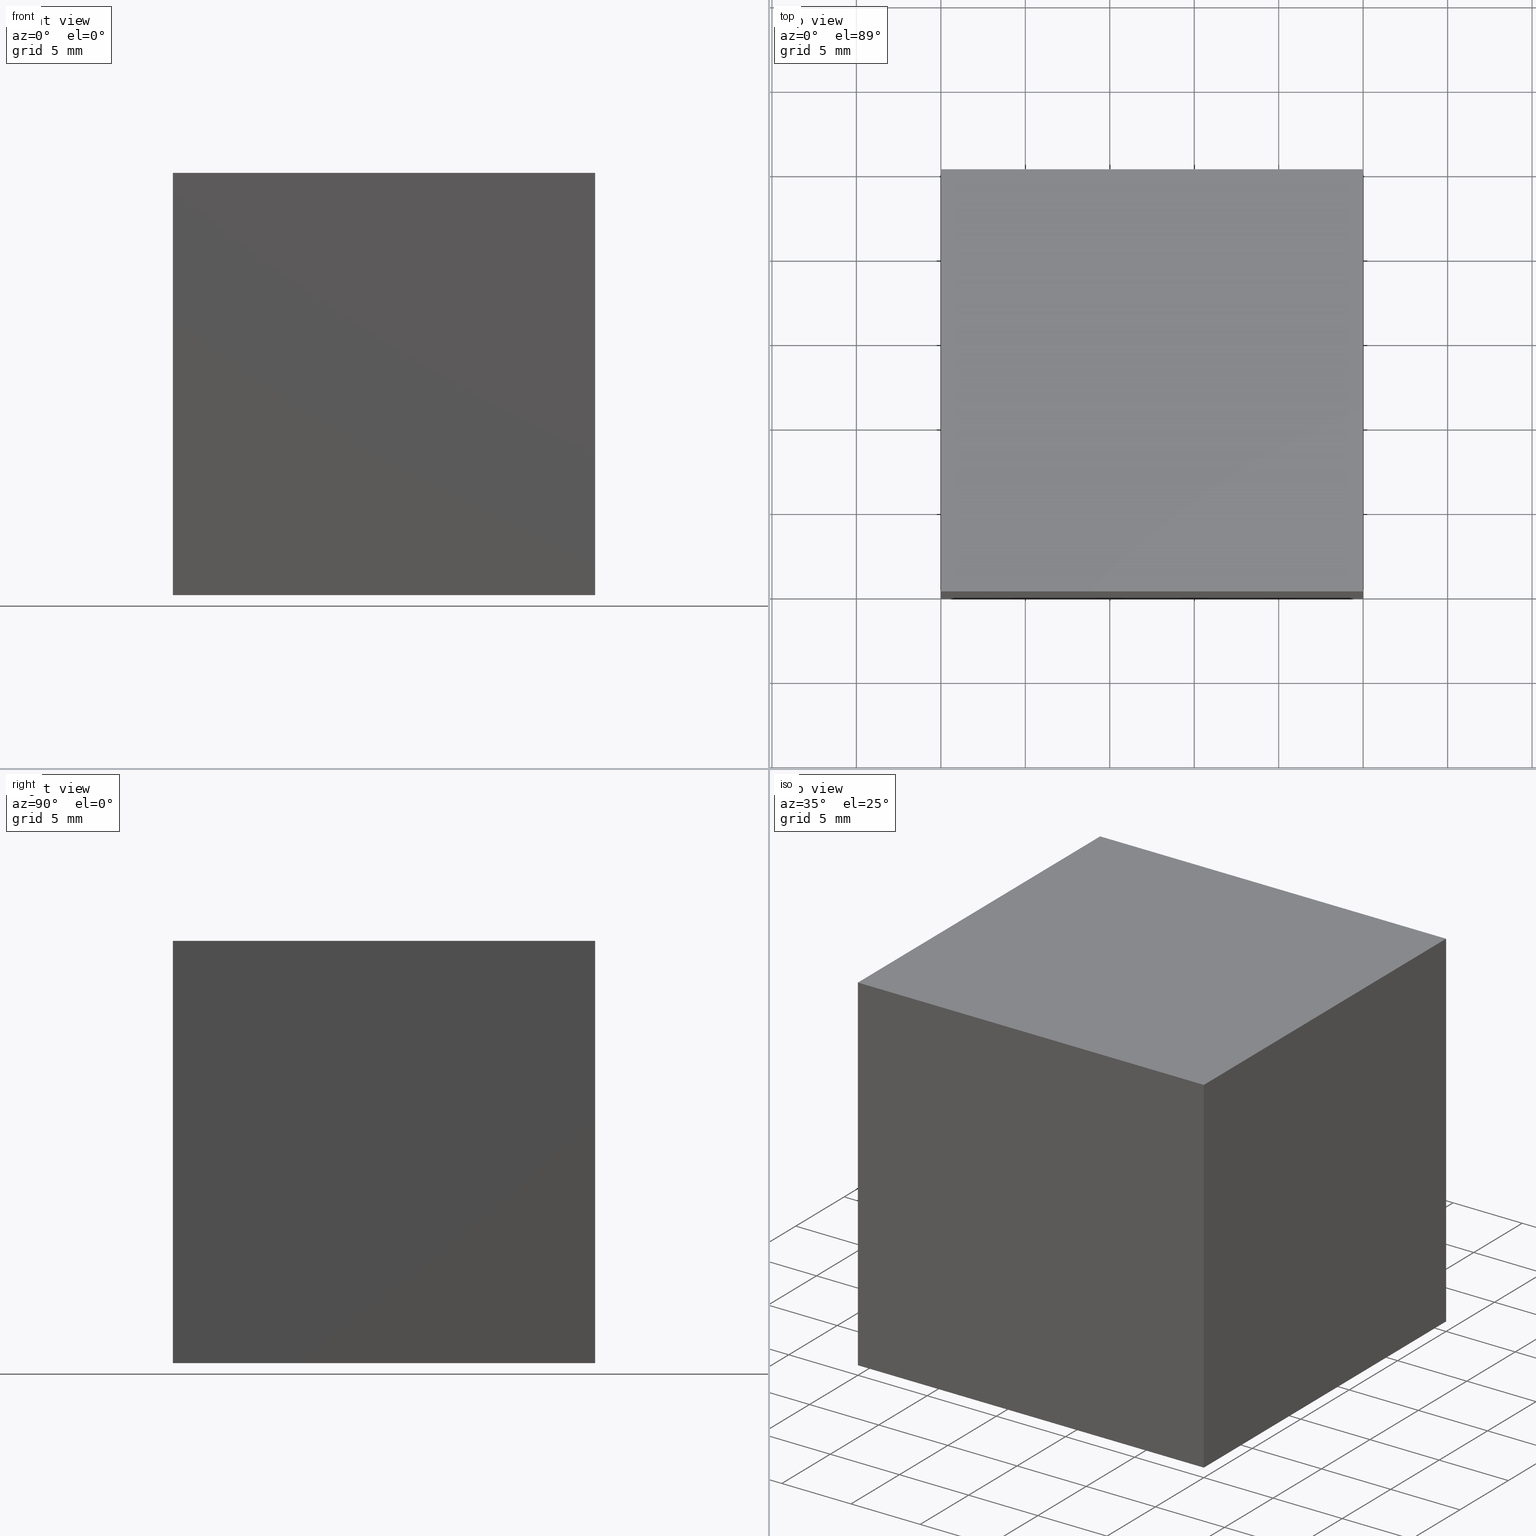
[diagram: canonical four-view strip — front | top / right | iso, engineering-drawing reading convention]
A machine part, canonical four-view strip (front | top / right | iso — engineering-drawing reading convention). The complete STEP part file that produces these views, byte-faithful:
ISO-10303-21;
HEADER;
FILE_DESCRIPTION (( 'STEP AP214' ),
    '1' );
FILE_NAME ('352515.STEP',
    '2019-08-15T02:49:03',
    ( 'user' ),
    ( '΢���й�' ),
    'SwSTEP 2.0',
    'SolidWorks 2016',
    '' );
FILE_SCHEMA (( 'AUTOMOTIVE_DESIGN' ));
ENDSEC;

DATA;
#1 = ORIENTED_EDGE ( 'NONE', *, *, #254, .T. ) ;
#2 = EDGE_CURVE ( 'NONE', #12, #44, #212, .T. ) ;
#3 =( NAMED_UNIT ( * ) PLANE_ANGLE_UNIT ( ) SI_UNIT ( $, .RADIAN. ) );
#4 = DIRECTION ( 'NONE',  ( -0.0000000000000000000, 0.0000000000000000000, 1.000000000000000000 ) ) ;
#5 = DIRECTION ( 'NONE',  ( 0.0000000000000000000, 0.0000000000000000000, 1.000000000000000000 ) ) ;
#6 = VECTOR ( 'NONE', #240, 1000.000000000000000 ) ;
#7 = FACE_OUTER_BOUND ( 'NONE', #72, .T. ) ;
#8 =( GEOMETRIC_REPRESENTATION_CONTEXT ( 3 ) GLOBAL_UNCERTAINTY_ASSIGNED_CONTEXT ( ( #21 ) ) GLOBAL_UNIT_ASSIGNED_CONTEXT ( ( #279, #176, #89 ) ) REPRESENTATION_CONTEXT ( 'NONE', 'WORKASPACE' ) );
#9 = EDGE_LOOP ( 'NONE', ( #11, #247, #297, #142 ) ) ;
#10 = SURFACE_STYLE_USAGE ( .BOTH. , #76 ) ;
#11 = ORIENTED_EDGE ( 'NONE', *, *, #92, .F. ) ;
#12 = VERTEX_POINT ( 'NONE', #295 ) ;
#13 = SURFACE_STYLE_FILL_AREA ( #40 ) ;
#14 = PLANE ( 'NONE',  #77 ) ;
#15 = DIRECTION ( 'NONE',  ( -1.000000000000000000, -0.0000000000000000000, -0.0000000000000000000 ) ) ;
#16 = DIRECTION ( 'NONE',  ( -1.000000000000000000, 0.0000000000000000000, 0.0000000000000000000 ) ) ;
#17 = EDGE_CURVE ( 'NONE', #267, #90, #138, .T. ) ;
#18 = DIRECTION ( 'NONE',  ( 0.0000000000000000000, 0.0000000000000000000, 1.000000000000000000 ) ) ;
#19 = ORIENTED_EDGE ( 'NONE', *, *, #219, .F. ) ;
#20 = CARTESIAN_POINT ( 'NONE',  ( 0.0000000000000000000, 0.0000000000000000000, 0.0000000000000000000 ) ) ;
#21 = UNCERTAINTY_MEASURE_WITH_UNIT (LENGTH_MEASURE( 1.000000000000000100E-005 ), #279, 'distance_accuracy_value', 'NONE');
#22 = PLANE ( 'NONE',  #71 ) ;
#23 = MECHANICAL_DESIGN_GEOMETRIC_PRESENTATION_REPRESENTATION (  '', ( #37 ), #8 ) ;
#24 = DIRECTION ( 'NONE',  ( -1.000000000000000000, -0.0000000000000000000, -0.0000000000000000000 ) ) ;
#25 = LINE ( 'NONE', #137, #257 ) ;
#26 = ADVANCED_FACE ( 'NONE', ( #65 ), #144, .T. ) ;
#27 = CARTESIAN_POINT ( 'NONE',  ( -25.00000000000000000, -0.0000000000000000000, -25.00000000000000000 ) ) ;
#28 = PRESENTATION_LAYER_ASSIGNMENT (  '', '', ( #37 ) ) ;
#29 = PRODUCT_RELATED_PRODUCT_CATEGORY ( 'part', '', ( #121 ) ) ;
#30 = UNCERTAINTY_MEASURE_WITH_UNIT (LENGTH_MEASURE( 1.000000000000000100E-005 ), #124, 'distance_accuracy_value', 'NONE');
#31 = DIRECTION ( 'NONE',  ( -1.000000000000000000, 0.0000000000000000000, 0.0000000000000000000 ) ) ;
#32 = VERTEX_POINT ( 'NONE', #249 ) ;
#33 = DIRECTION ( 'NONE',  ( 0.0000000000000000000, 1.000000000000000000, 0.0000000000000000000 ) ) ;
#34 = EDGE_CURVE ( 'NONE', #90, #44, #237, .T. ) ;
#35 = ORIENTED_EDGE ( 'NONE', *, *, #264, .F. ) ;
#36 = DIRECTION ( 'NONE',  ( 0.0000000000000000000, -0.0000000000000000000, 1.000000000000000000 ) ) ;
#37 = STYLED_ITEM ( 'NONE', ( #268 ), #223 ) ;
#38 = CARTESIAN_POINT ( 'NONE',  ( -25.00000000000000000, 0.0000000000000000000, -25.00000000000000000 ) ) ;
#39 = SURFACE_STYLE_USAGE ( .BOTH. , #79 ) ;
#40 = FILL_AREA_STYLE ('',( #50 ) ) ;
#41 = EDGE_LOOP ( 'NONE', ( #282, #272, #177 ) ) ;
#42 = APPLICATION_PROTOCOL_DEFINITION ( 'draft international standard', 'automotive_design', 1998, #43 ) ;
#43 = APPLICATION_CONTEXT ( 'automotive_design' ) ;
#44 = VERTEX_POINT ( 'NONE', #256 ) ;
#45 = DIRECTION ( 'NONE',  ( 0.0000000000000000000, 0.0000000000000000000, -1.000000000000000000 ) ) ;
#46 = ADVANCED_FACE ( 'NONE', ( #7 ), #150, .T. ) ;
#47 = DIRECTION ( 'NONE',  ( -0.0000000000000000000, -1.000000000000000000, -0.0000000000000000000 ) ) ;
#48 = CARTESIAN_POINT ( 'NONE',  ( -25.00000000000000000, 25.00000000000000000, -25.00000000000000000 ) ) ;
#49 = ORIENTED_EDGE ( 'NONE', *, *, #182, .F. ) ;
#50 = FILL_AREA_STYLE_COLOUR ( '', #238 ) ;
#51 = ORIENTED_EDGE ( 'NONE', *, *, #17, .F. ) ;
#52 = CARTESIAN_POINT ( 'NONE',  ( -25.00000000000000000, 25.00000000000000000, -25.00000000000000000 ) ) ;
#53 = VECTOR ( 'NONE', #81, 1000.000000000000000 ) ;
#54 =( NAMED_UNIT ( * ) SI_UNIT ( $, .STERADIAN. ) SOLID_ANGLE_UNIT ( ) );
#55 = CARTESIAN_POINT ( 'NONE',  ( -25.00000000000000000, 25.00000000000000000, -25.00000000000000000 ) ) ;
#56 = VERTEX_POINT ( 'NONE', #243 ) ;
#57 = CARTESIAN_POINT ( 'NONE',  ( 0.0000000000000000000, 25.00000000000000000, 0.0000000000000000000 ) ) ;
#58 = PRODUCT_DEFINITION_CONTEXT ( 'detailed design', #75, 'design' ) ;
#59 = EDGE_LOOP ( 'NONE', ( #1, #141, #210, #203 ) ) ;
#60 = LINE ( 'NONE', #103, #127 ) ;
#61 = EDGE_CURVE ( 'NONE', #99, #188, #25, .T. ) ;
#62 = SURFACE_STYLE_FILL_AREA ( #271 ) ;
#63 = LINE ( 'NONE', #20, #261 ) ;
#64 = DIRECTION ( 'NONE',  ( 0.7071067811865475700, 0.0000000000000000000, -0.7071067811865475700 ) ) ;
#65 = FACE_OUTER_BOUND ( 'NONE', #119, .T. ) ;
#66 = AXIS2_PLACEMENT_3D ( 'NONE', #85, #122, #134 ) ;
#67 =( GEOMETRIC_REPRESENTATION_CONTEXT ( 3 ) GLOBAL_UNCERTAINTY_ASSIGNED_CONTEXT ( ( #292 ) ) GLOBAL_UNIT_ASSIGNED_CONTEXT ( ( #160, #3, #54 ) ) REPRESENTATION_CONTEXT ( 'NONE', 'WORKASPACE' ) );
#68 = ADVANCED_FACE ( 'NONE', ( #69 ), #214, .F. ) ;
#69 = FACE_OUTER_BOUND ( 'NONE', #41, .T. ) ;
#70 = EDGE_LOOP ( 'NONE', ( #191, #218, #107, #220 ) ) ;
#71 = AXIS2_PLACEMENT_3D ( 'NONE', #250, #33, #36 ) ;
#72 = EDGE_LOOP ( 'NONE', ( #51, #283, #105, #114 ) ) ;
#73 = COLOUR_RGB ( '',1.000000000000000000, 1.000000000000000000, 1.000000000000000000 ) ;
#74 = VECTOR ( 'NONE', #209, 1000.000000000000100 ) ;
#75 = APPLICATION_CONTEXT ( 'automotive_design' ) ;
#76 = SURFACE_SIDE_STYLE ('',( #13 ) ) ;
#77 = AXIS2_PLACEMENT_3D ( 'NONE', #286, #16, #18 ) ;
#78 = ORIENTED_EDGE ( 'NONE', *, *, #298, .F. ) ;
#79 = SURFACE_SIDE_STYLE ('',( #62 ) ) ;
#80 = LINE ( 'NONE', #280, #100 ) ;
#81 = DIRECTION ( 'NONE',  ( -0.0000000000000000000, -0.0000000000000000000, -1.000000000000000000 ) ) ;
#82 = LINE ( 'NONE', #55, #116 ) ;
#83 = VERTEX_POINT ( 'NONE', #260 ) ;
#84 = AXIS2_PLACEMENT_3D ( 'NONE', #221, #252, #187 ) ;
#85 = CARTESIAN_POINT ( 'NONE',  ( 0.0000000000000000000, 25.00000000000000000, 0.0000000000000000000 ) ) ;
#86 = PLANE ( 'NONE',  #66 ) ;
#87 = DIRECTION ( 'NONE',  ( 1.000000000000000000, 0.0000000000000000000, 0.0000000000000000000 ) ) ;
#88 = VECTOR ( 'NONE', #229, 1000.000000000000100 ) ;
#89 =( NAMED_UNIT ( * ) SI_UNIT ( $, .STERADIAN. ) SOLID_ANGLE_UNIT ( ) );
#90 = VERTEX_POINT ( 'NONE', #148 ) ;
#91 = ORIENTED_EDGE ( 'NONE', *, *, #61, .F. ) ;
#92 = EDGE_CURVE ( 'NONE', #44, #267, #265, .T. ) ;
#93 = CARTESIAN_POINT ( 'NONE',  ( 0.0000000000000000000, 25.00000000000000000, 0.0000000000000000000 ) ) ;
#94 = DIRECTION ( 'NONE',  ( 0.0000000000000000000, 0.0000000000000000000, -1.000000000000000000 ) ) ;
#95 = CARTESIAN_POINT ( 'NONE',  ( 0.0000000000000000000, 25.00000000000000000, 0.0000000000000000000 ) ) ;
#96 = FACE_OUTER_BOUND ( 'NONE', #300, .T. ) ;
#97 = DIRECTION ( 'NONE',  ( -0.0000000000000000000, -0.0000000000000000000, -1.000000000000000000 ) ) ;
#98 =( NAMED_UNIT ( * ) PLANE_ANGLE_UNIT ( ) SI_UNIT ( $, .RADIAN. ) );
#99 = VERTEX_POINT ( 'NONE', #277 ) ;
#100 = VECTOR ( 'NONE', #232, 1000.000000000000100 ) ;
#101 = AXIS2_PLACEMENT_3D ( 'NONE', #93, #165, #118 ) ;
#102 = PLANE ( 'NONE',  #109 ) ;
#103 = CARTESIAN_POINT ( 'NONE',  ( 0.0000000000000000000, 25.00000000000000000, -25.00000000000000000 ) ) ;
#104 = LINE ( 'NONE', #38, #74 ) ;
#105 = ORIENTED_EDGE ( 'NONE', *, *, #217, .T. ) ;
#106 = DIRECTION ( 'NONE',  ( 0.0000000000000000000, -1.000000000000000000, 0.0000000000000000000 ) ) ;
#107 = ORIENTED_EDGE ( 'NONE', *, *, #183, .F. ) ;
#108 =( NAMED_UNIT ( * ) PLANE_ANGLE_UNIT ( ) SI_UNIT ( $, .RADIAN. ) );
#109 = AXIS2_PLACEMENT_3D ( 'NONE', #242, #113, #266 ) ;
#110 =( NAMED_UNIT ( * ) SI_UNIT ( $, .STERADIAN. ) SOLID_ANGLE_UNIT ( ) );
#111 = VECTOR ( 'NONE', #97, 1000.000000000000000 ) ;
#112 = SURFACE_STYLE_USAGE ( .BOTH. , #201 ) ;
#113 = DIRECTION ( 'NONE',  ( 0.0000000000000000000, -0.0000000000000000000, 1.000000000000000000 ) ) ;
#114 = ORIENTED_EDGE ( 'NONE', *, *, #182, .T. ) ;
#115 = CARTESIAN_POINT ( 'NONE',  ( -25.00000000000000000, -0.0000000000000000000, -25.00000000000000000 ) ) ;
#116 = VECTOR ( 'NONE', #47, 1000.000000000000000 ) ;
#117 = VECTOR ( 'NONE', #288, 1000.000000000000100 ) ;
#118 = DIRECTION ( 'NONE',  ( 0.0000000000000000000, 0.0000000000000000000, 1.000000000000000000 ) ) ;
#119 = EDGE_LOOP ( 'NONE', ( #139, #49, #224, #130 ) ) ;
#120 = LINE ( 'NONE', #52, #88 ) ;
#121 = PRODUCT ( '352515', '352515', '', ( #301 ) ) ;
#122 = DIRECTION ( 'NONE',  ( -0.0000000000000000000, 1.000000000000000000, 0.0000000000000000000 ) ) ;
#123 = PRODUCT_DEFINITION_FORMATION_WITH_SPECIFIED_SOURCE ( '�κ�', '', #121, .NOT_KNOWN. ) ;
#124 =( LENGTH_UNIT ( ) NAMED_UNIT ( * ) SI_UNIT ( .MILLI., .METRE. ) );
#125 = CARTESIAN_POINT ( 'NONE',  ( -25.00000000000000000, 25.00000000000000000, 0.0000000000000000000 ) ) ;
#126 = CARTESIAN_POINT ( 'NONE',  ( 0.0000000000000000000, 0.0000000000000000000, 0.0000000000000000000 ) ) ;
#127 = VECTOR ( 'NONE', #181, 1000.000000000000000 ) ;
#128 = LINE ( 'NONE', #48, #6 ) ;
#129 = LINE ( 'NONE', #156, #53 ) ;
#130 = ORIENTED_EDGE ( 'NONE', *, *, #2, .T. ) ;
#131 = ORIENTED_EDGE ( 'NONE', *, *, #200, .F. ) ;
#132 = MANIFOLD_SOLID_BREP ( '͹̨-����1', #245 ) ;
#133 = CARTESIAN_POINT ( 'NONE',  ( -25.00000000000000000, 25.00000000000000000, 0.0000000000000000000 ) ) ;
#134 = DIRECTION ( 'NONE',  ( 0.0000000000000000000, -0.0000000000000000000, 1.000000000000000000 ) ) ;
#135 = VECTOR ( 'NONE', #106, 1000.000000000000000 ) ;
#136 = VECTOR ( 'NONE', #24, 1000.000000000000000 ) ;
#137 = CARTESIAN_POINT ( 'NONE',  ( 0.0000000000000000000, 25.00000000000000000, 0.0000000000000000000 ) ) ;
#138 = LINE ( 'NONE', #169, #117 ) ;
#139 = ORIENTED_EDGE ( 'NONE', *, *, #34, .F. ) ;
#140 = EDGE_CURVE ( 'NONE', #99, #83, #293, .T. ) ;
#141 = ORIENTED_EDGE ( 'NONE', *, *, #159, .F. ) ;
#142 = ORIENTED_EDGE ( 'NONE', *, *, #299, .T. ) ;
#143 = ADVANCED_FACE ( 'NONE', ( #228 ), #231, .F. ) ;
#144 = PLANE ( 'NONE',  #147 ) ;
#145 = LINE ( 'NONE', #289, #136 ) ;
#146 = DIRECTION ( 'NONE',  ( 1.000000000000000000, 0.0000000000000000000, 0.0000000000000000000 ) ) ;
#147 = AXIS2_PLACEMENT_3D ( 'NONE', #133, #4, #87 ) ;
#148 = CARTESIAN_POINT ( 'NONE',  ( 0.0000000000000000000, 0.0000000000000000000, 0.0000000000000000000 ) ) ;
#149 = DIRECTION ( 'NONE',  ( -0.7071067811865474600, 0.0000000000000000000, -0.7071067811865474600 ) ) ;
#150 = PLANE ( 'NONE',  #152 ) ;
#151 = EDGE_LOOP ( 'NONE', ( #258, #131, #19 ) ) ;
#152 = AXIS2_PLACEMENT_3D ( 'NONE', #57, #64, #149 ) ;
#153 = STYLED_ITEM ( 'NONE', ( #226 ), #132 ) ;
#154 = FACE_OUTER_BOUND ( 'NONE', #151, .T. ) ;
#155 = PRESENTATION_LAYER_ASSIGNMENT (  '', '', ( #153 ) ) ;
#156 = CARTESIAN_POINT ( 'NONE',  ( -25.00000000000000000, 25.00000000000000000, -25.00000000000000000 ) ) ;
#157 = ORIENTED_EDGE ( 'NONE', *, *, #140, .T. ) ;
#158 = LINE ( 'NONE', #262, #135 ) ;
#159 = EDGE_CURVE ( 'NONE', #83, #32, #204, .T. ) ;
#160 =( LENGTH_UNIT ( ) NAMED_UNIT ( * ) SI_UNIT ( .MILLI., .METRE. ) );
#161 = MANIFOLD_SOLID_BREP ( '͹̨-����2', #199 ) ;
#162 = ORIENTED_EDGE ( 'NONE', *, *, #183, .T. ) ;
#163 = ORIENTED_EDGE ( 'NONE', *, *, #205, .T. ) ;
#164 = VECTOR ( 'NONE', #94, 1000.000000000000000 ) ;
#165 = DIRECTION ( 'NONE',  ( -1.000000000000000000, 0.0000000000000000000, 0.0000000000000000000 ) ) ;
#166 = VERTEX_POINT ( 'NONE', #95 ) ;
#167 = ADVANCED_FACE ( 'NONE', ( #171 ), #102, .F. ) ;
#168 = ORIENTED_EDGE ( 'NONE', *, *, #298, .T. ) ;
#169 = CARTESIAN_POINT ( 'NONE',  ( 0.0000000000000000000, 0.0000000000000000000, 0.0000000000000000000 ) ) ;
#170 = VERTEX_POINT ( 'NONE', #197 ) ;
#171 = FACE_OUTER_BOUND ( 'NONE', #70, .T. ) ;
#172 = UNCERTAINTY_MEASURE_WITH_UNIT (LENGTH_MEASURE( 1.000000000000000100E-005 ), #270, 'distance_accuracy_value', 'NONE');
#173 = AXIS2_PLACEMENT_3D ( 'NONE', #253, #241, #190 ) ;
#174 =( NAMED_UNIT ( * ) SI_UNIT ( $, .STERADIAN. ) SOLID_ANGLE_UNIT ( ) );
#175 = CARTESIAN_POINT ( 'NONE',  ( 0.0000000000000000000, 25.00000000000000000, -25.00000000000000000 ) ) ;
#176 =( NAMED_UNIT ( * ) PLANE_ANGLE_UNIT ( ) SI_UNIT ( $, .RADIAN. ) );
#177 = ORIENTED_EDGE ( 'NONE', *, *, #92, .T. ) ;
#178 = COLOUR_RGB ( '',1.000000000000000000, 1.000000000000000000, 1.000000000000000000 ) ;
#179 = CARTESIAN_POINT ( 'NONE',  ( -25.00000000000000000, 0.0000000000000000000, 0.0000000000000000000 ) ) ;
#180 = ORIENTED_EDGE ( 'NONE', *, *, #225, .F. ) ;
#181 = DIRECTION ( 'NONE',  ( -1.000000000000000000, 0.0000000000000000000, 0.0000000000000000000 ) ) ;
#182 = EDGE_CURVE ( 'NONE', #166, #90, #158, .T. ) ;
#183 = EDGE_CURVE ( 'NONE', #83, #170, #60, .T. ) ;
#184 = PRODUCT_DEFINITION ( 'δ֪', '', #123, #58 ) ;
#185 = ADVANCED_FACE ( 'NONE', ( #192 ), #251, .F. ) ;
#186 = APPLICATION_PROTOCOL_DEFINITION ( 'draft international standard', 'automotive_design', 1998, #75 ) ;
#187 = DIRECTION ( 'NONE',  ( 0.0000000000000000000, -0.0000000000000000000, 1.000000000000000000 ) ) ;
#188 = VERTEX_POINT ( 'NONE', #126 ) ;
#189 = CARTESIAN_POINT ( 'NONE',  ( 0.0000000000000000000, 25.00000000000000000, 0.0000000000000000000 ) ) ;
#190 = DIRECTION ( 'NONE',  ( 0.0000000000000000000, -0.0000000000000000000, 1.000000000000000000 ) ) ;
#191 = ORIENTED_EDGE ( 'NONE', *, *, #264, .T. ) ;
#192 = FACE_OUTER_BOUND ( 'NONE', #59, .T. ) ;
#193 = STYLED_ITEM ( 'NONE', ( #234 ), #161 ) ;
#194 = FILL_AREA_STYLE_COLOUR ( '', #178 ) ;
#195 = VECTOR ( 'NONE', #273, 1000.000000000000000 ) ;
#196 = VECTOR ( 'NONE', #15, 1000.000000000000000 ) ;
#197 = CARTESIAN_POINT ( 'NONE',  ( -25.00000000000000000, 25.00000000000000000, -25.00000000000000000 ) ) ;
#198 = AXIS2_PLACEMENT_3D ( 'NONE', #276, #287, #216 ) ;
#199 = CLOSED_SHELL ( 'NONE', ( #46, #233, #26, #255, #68 ) ) ;
#200 = EDGE_CURVE ( 'NONE', #12, #246, #129, .T. ) ;
#201 = SURFACE_SIDE_STYLE ('',( #239 ) ) ;
#202 = FILL_AREA_STYLE ('',( #194 ) ) ;
#203 = ORIENTED_EDGE ( 'NONE', *, *, #61, .T. ) ;
#204 = LINE ( 'NONE', #175, #195 ) ;
#205 = EDGE_CURVE ( 'NONE', #170, #56, #82, .T. ) ;
#206 = SHAPE_DEFINITION_REPRESENTATION ( #281, #223 ) ;
#207 = VECTOR ( 'NONE', #294, 1000.000000000000000 ) ;
#208 = EDGE_LOOP ( 'NONE', ( #227, #91, #78, #163 ) ) ;
#209 = DIRECTION ( 'NONE',  ( 0.7071067811865474600, 0.0000000000000000000, 0.7071067811865474600 ) ) ;
#210 = ORIENTED_EDGE ( 'NONE', *, *, #140, .F. ) ;
#211 = ADVANCED_FACE ( 'NONE', ( #278 ), #235, .F. ) ;
#212 = LINE ( 'NONE', #125, #207 ) ;
#213 =( GEOMETRIC_REPRESENTATION_CONTEXT ( 3 ) GLOBAL_UNCERTAINTY_ASSIGNED_CONTEXT ( ( #30 ) ) GLOBAL_UNIT_ASSIGNED_CONTEXT ( ( #124, #98, #174 ) ) REPRESENTATION_CONTEXT ( 'NONE', 'WORKASPACE' ) );
#214 = PLANE ( 'NONE',  #173 ) ;
#215 = ORIENTED_EDGE ( 'NONE', *, *, #254, .F. ) ;
#216 = DIRECTION ( 'NONE',  ( -0.7071067811865474600, 0.0000000000000000000, -0.7071067811865474600 ) ) ;
#217 = EDGE_CURVE ( 'NONE', #246, #166, #80, .T. ) ;
#218 = ORIENTED_EDGE ( 'NONE', *, *, #205, .F. ) ;
#219 = EDGE_CURVE ( 'NONE', #166, #12, #145, .T. ) ;
#220 = ORIENTED_EDGE ( 'NONE', *, *, #159, .T. ) ;
#221 = CARTESIAN_POINT ( 'NONE',  ( 0.0000000000000000000, 0.0000000000000000000, 0.0000000000000000000 ) ) ;
#222 = MECHANICAL_DESIGN_GEOMETRIC_PRESENTATION_REPRESENTATION (  '', ( #193 ), #230 ) ;
#223 = ADVANCED_BREP_SHAPE_REPRESENTATION ( '352515', ( #132, #161, #291 ), #67 ) ;
#224 = ORIENTED_EDGE ( 'NONE', *, *, #219, .T. ) ;
#225 = EDGE_CURVE ( 'NONE', #56, #188, #104, .T. ) ;
#226 = PRESENTATION_STYLE_ASSIGNMENT (( #39 ) ) ;
#227 = ORIENTED_EDGE ( 'NONE', *, *, #225, .T. ) ;
#228 = FACE_OUTER_BOUND ( 'NONE', #208, .T. ) ;
#229 = DIRECTION ( 'NONE',  ( 0.7071067811865474600, 0.0000000000000000000, 0.7071067811865474600 ) ) ;
#230 =( GEOMETRIC_REPRESENTATION_CONTEXT ( 3 ) GLOBAL_UNCERTAINTY_ASSIGNED_CONTEXT ( ( #172 ) ) GLOBAL_UNIT_ASSIGNED_CONTEXT ( ( #270, #108, #110 ) ) REPRESENTATION_CONTEXT ( 'NONE', 'WORKASPACE' ) );
#231 = PLANE ( 'NONE',  #198 ) ;
#232 = DIRECTION ( 'NONE',  ( 0.7071067811865474600, 0.0000000000000000000, 0.7071067811865474600 ) ) ;
#233 = ADVANCED_FACE ( 'NONE', ( #248 ), #14, .T. ) ;
#234 = PRESENTATION_STYLE_ASSIGNMENT (( #112 ) ) ;
#235 = PLANE ( 'NONE',  #84 ) ;
#236 = VECTOR ( 'NONE', #31, 1000.000000000000000 ) ;
#237 = LINE ( 'NONE', #179, #196 ) ;
#238 = COLOUR_RGB ( '',1.000000000000000000, 1.000000000000000000, 1.000000000000000000 ) ;
#239 = SURFACE_STYLE_FILL_AREA ( #202 ) ;
#240 = DIRECTION ( 'NONE',  ( 0.0000000000000000000, -1.000000000000000000, 0.0000000000000000000 ) ) ;
#241 = DIRECTION ( 'NONE',  ( 0.0000000000000000000, 1.000000000000000000, 0.0000000000000000000 ) ) ;
#242 = CARTESIAN_POINT ( 'NONE',  ( 0.0000000000000000000, 25.00000000000000000, -25.00000000000000000 ) ) ;
#243 = CARTESIAN_POINT ( 'NONE',  ( -25.00000000000000000, 0.0000000000000000000, -25.00000000000000000 ) ) ;
#244 = PRESENTATION_LAYER_ASSIGNMENT (  '', '', ( #193 ) ) ;
#245 = CLOSED_SHELL ( 'NONE', ( #143, #185, #167, #285, #211 ) ) ;
#246 = VERTEX_POINT ( 'NONE', #296 ) ;
#247 = ORIENTED_EDGE ( 'NONE', *, *, #2, .F. ) ;
#248 = FACE_OUTER_BOUND ( 'NONE', #9, .T. ) ;
#249 = CARTESIAN_POINT ( 'NONE',  ( 0.0000000000000000000, 0.0000000000000000000, -25.00000000000000000 ) ) ;
#250 = CARTESIAN_POINT ( 'NONE',  ( 0.0000000000000000000, 25.00000000000000000, 0.0000000000000000000 ) ) ;
#251 = PLANE ( 'NONE',  #101 ) ;
#252 = DIRECTION ( 'NONE',  ( -0.0000000000000000000, 1.000000000000000000, 0.0000000000000000000 ) ) ;
#253 = CARTESIAN_POINT ( 'NONE',  ( 0.0000000000000000000, 0.0000000000000000000, 0.0000000000000000000 ) ) ;
#254 = EDGE_CURVE ( 'NONE', #188, #32, #63, .T. ) ;
#255 = ADVANCED_FACE ( 'NONE', ( #154 ), #22, .T. ) ;
#256 = CARTESIAN_POINT ( 'NONE',  ( -25.00000000000000000, 0.0000000000000000000, 0.0000000000000000000 ) ) ;
#257 = VECTOR ( 'NONE', #259, 1000.000000000000000 ) ;
#258 = ORIENTED_EDGE ( 'NONE', *, *, #217, .F. ) ;
#259 = DIRECTION ( 'NONE',  ( -0.0000000000000000000, -1.000000000000000000, -0.0000000000000000000 ) ) ;
#260 = CARTESIAN_POINT ( 'NONE',  ( 0.0000000000000000000, 25.00000000000000000, -25.00000000000000000 ) ) ;
#261 = VECTOR ( 'NONE', #45, 1000.000000000000000 ) ;
#262 = CARTESIAN_POINT ( 'NONE',  ( 0.0000000000000000000, 25.00000000000000000, 0.0000000000000000000 ) ) ;
#263 = FILL_AREA_STYLE_COLOUR ( '', #73 ) ;
#264 = EDGE_CURVE ( 'NONE', #32, #56, #274, .T. ) ;
#265 = LINE ( 'NONE', #115, #111 ) ;
#266 = DIRECTION ( 'NONE',  ( 1.000000000000000000, 0.0000000000000000000, -0.0000000000000000000 ) ) ;
#267 = VERTEX_POINT ( 'NONE', #27 ) ;
#268 = PRESENTATION_STYLE_ASSIGNMENT (( #10 ) ) ;
#269 = CARTESIAN_POINT ( 'NONE',  ( 0.0000000000000000000, 0.0000000000000000000, 0.0000000000000000000 ) ) ;
#270 =( LENGTH_UNIT ( ) NAMED_UNIT ( * ) SI_UNIT ( .MILLI., .METRE. ) );
#271 = FILL_AREA_STYLE ('',( #263 ) ) ;
#272 = ORIENTED_EDGE ( 'NONE', *, *, #34, .T. ) ;
#273 = DIRECTION ( 'NONE',  ( -0.0000000000000000000, -1.000000000000000000, -0.0000000000000000000 ) ) ;
#274 = LINE ( 'NONE', #290, #236 ) ;
#275 = EDGE_LOOP ( 'NONE', ( #180, #35, #215 ) ) ;
#276 = CARTESIAN_POINT ( 'NONE',  ( -25.00000000000000000, 25.00000000000000000, -25.00000000000000000 ) ) ;
#277 = CARTESIAN_POINT ( 'NONE',  ( 0.0000000000000000000, 25.00000000000000000, 0.0000000000000000000 ) ) ;
#278 = FACE_OUTER_BOUND ( 'NONE', #275, .T. ) ;
#279 =( LENGTH_UNIT ( ) NAMED_UNIT ( * ) SI_UNIT ( .MILLI., .METRE. ) );
#280 = CARTESIAN_POINT ( 'NONE',  ( 0.0000000000000000000, 25.00000000000000000, 0.0000000000000000000 ) ) ;
#281 = PRODUCT_DEFINITION_SHAPE ( 'NONE', 'NONE',  #184 ) ;
#282 = ORIENTED_EDGE ( 'NONE', *, *, #17, .T. ) ;
#283 = ORIENTED_EDGE ( 'NONE', *, *, #299, .F. ) ;
#284 = MECHANICAL_DESIGN_GEOMETRIC_PRESENTATION_REPRESENTATION (  '', ( #153 ), #213 ) ;
#285 = ADVANCED_FACE ( 'NONE', ( #96 ), #86, .T. ) ;
#286 = CARTESIAN_POINT ( 'NONE',  ( -25.00000000000000000, 25.00000000000000000, -25.00000000000000000 ) ) ;
#287 = DIRECTION ( 'NONE',  ( 0.7071067811865475700, 0.0000000000000000000, -0.7071067811865475700 ) ) ;
#288 = DIRECTION ( 'NONE',  ( 0.7071067811865474600, 0.0000000000000000000, 0.7071067811865474600 ) ) ;
#289 = CARTESIAN_POINT ( 'NONE',  ( -25.00000000000000000, 25.00000000000000000, 0.0000000000000000000 ) ) ;
#290 = CARTESIAN_POINT ( 'NONE',  ( 0.0000000000000000000, 0.0000000000000000000, -25.00000000000000000 ) ) ;
#291 = AXIS2_PLACEMENT_3D ( 'NONE', #269, #5, #146 ) ;
#292 = UNCERTAINTY_MEASURE_WITH_UNIT (LENGTH_MEASURE( 1.000000000000000100E-005 ), #160, 'distance_accuracy_value', 'NONE');
#293 = LINE ( 'NONE', #189, #164 ) ;
#294 = DIRECTION ( 'NONE',  ( 0.0000000000000000000, -1.000000000000000000, 0.0000000000000000000 ) ) ;
#295 = CARTESIAN_POINT ( 'NONE',  ( -25.00000000000000000, 25.00000000000000000, 0.0000000000000000000 ) ) ;
#296 = CARTESIAN_POINT ( 'NONE',  ( -25.00000000000000000, 25.00000000000000000, -25.00000000000000000 ) ) ;
#297 = ORIENTED_EDGE ( 'NONE', *, *, #200, .T. ) ;
#298 = EDGE_CURVE ( 'NONE', #170, #99, #120, .T. ) ;
#299 = EDGE_CURVE ( 'NONE', #246, #267, #128, .T. ) ;
#300 = EDGE_LOOP ( 'NONE', ( #168, #157, #162 ) ) ;
#301 = PRODUCT_CONTEXT ( 'NONE', #43, 'mechanical' ) ;
ENDSEC;
END-ISO-10303-21;
